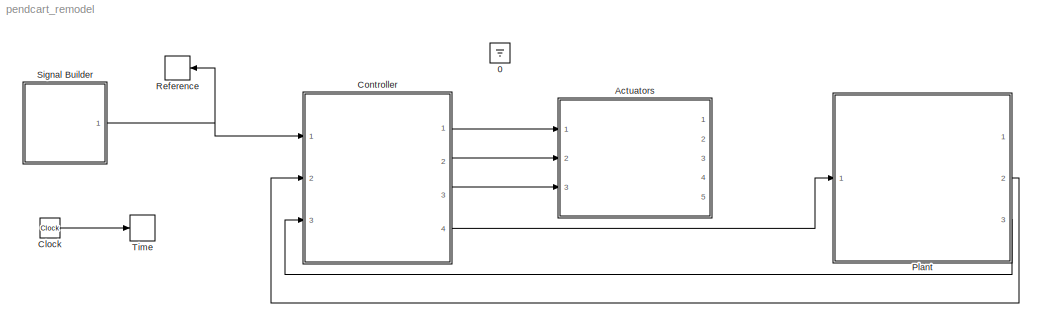
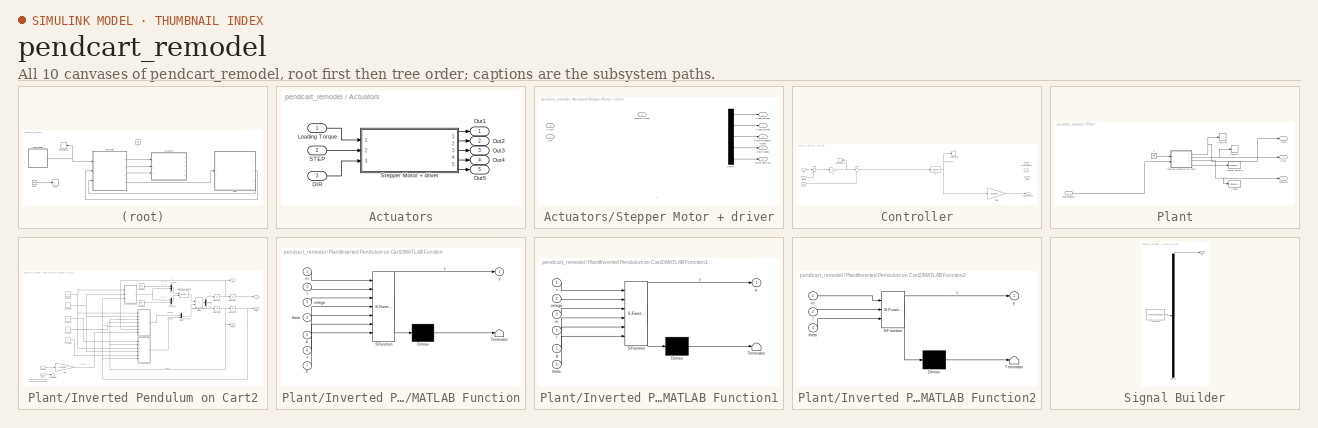
[diagram: thumbnail index - all 10 canvases of the model, root first then tree order]
MODEL pendcart_remodel
KIND model
BLOCK [Ground] 0
  SID = 94
BLOCK [SubSystem] Actuators
  Ports = [3, 5]
  RequestExecContextInheritance = off
  SID = 493
  Variant = off
BLOCK [Inport] Actuators/DIR
  IconDisplay = Port number
  Port = 3
  SID = 496
BLOCK [Inport] Actuators/Loading Torque
  IconDisplay = Port number
  SID = 494
BLOCK [Outport] Actuators/Out1
  IconDisplay = Port number
  SID = 497
BLOCK [Outport] Actuators/Out2
  IconDisplay = Port number
  Port = 2
  SID = 498
BLOCK [Outport] Actuators/Out3
  IconDisplay = Port number
  Port = 3
  SID = 499
BLOCK [Outport] Actuators/Out4
  IconDisplay = Port number
  Port = 4
  SID = 500
BLOCK [Outport] Actuators/Out5
  IconDisplay = Port number
  Port = 5
  SID = 501
BLOCK [Inport] Actuators/STEP
  IconDisplay = Port number
  Port = 2
  SID = 495
BLOCK [SubSystem] Actuators/Stepper Motor + driver
  Ports = [3, 5]
  RequestExecContextInheritance = off
  SID = 423
  Variant = off
BLOCK [Inport] Actuators/Stepper Motor + driver/DIR
  IconDisplay = Port number
  Port = 3
  SID = 426
BLOCK [Demux] Actuators/Stepper Motor + driver/Demux
  DisplayOption = bar
  Outputs = 5
  Ports = [1, 5]
  SID = 428
BLOCK [Outport] Actuators/Stepper Motor + driver/Electromagnetic torque
  IconDisplay = Port number
  Port = 3
  SID = 478
BLOCK [Inport] Actuators/Stepper Motor + driver/Loading Torque
  IconDisplay = Port number
  SID = 424
BLOCK [Outport] Actuators/Stepper Motor + driver/Phase current
  IconDisplay = Port number
  Port = 2
  SID = 477
BLOCK [Outport] Actuators/Stepper Motor + driver/Phase voltage
  IconDisplay = Port number
  SID = 476
BLOCK [Outport] Actuators/Stepper Motor + driver/Rotor position
  IconDisplay = Port number
  Port = 5
  SID = 480
BLOCK [Outport] Actuators/Stepper Motor + driver/Rotor speed
  IconDisplay = Port number
  Port = 4
  SID = 479
BLOCK [Inport] Actuators/Stepper Motor + driver/STEP
  IconDisplay = Port number
  Port = 2
  SID = 425
BLOCK [Clock] Clock
  SID = 4
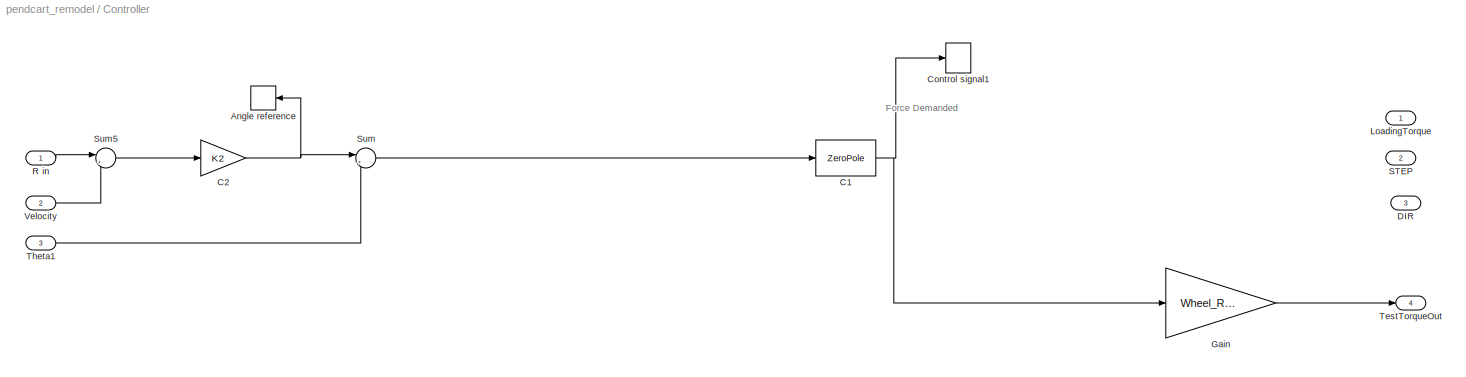
BLOCK [SubSystem] Controller
  Ports = [3, 4]
  RequestExecContextInheritance = off
  SID = 251
  Variant = off
BLOCK [ToWorkspace] Controller/Angle reference
  MaxDataPoints = inf
  Ports = [1]
  SID = 2
  SampleTime = -1
  VariableName = ri
BLOCK [ZeroPole] Controller/C1
  Gain = [K1]
  Poles = [-p1]
  SID = 253
  Zeros = [-p]
BLOCK [Gain] Controller/C2
  Gain = K2
  OutDataTypeStr = Inherit: Inherit via internal rule
  ParamDataTypeStr = Inherit: Inherit via internal rule
  SID = 114
  SaturateOnIntegerOverflow = off
BLOCK [ToWorkspace] Controller/Control signal1
  MaxDataPoints = inf
  Ports = [1]
  SID = 254
  SampleTime = -1
  VariableName = u
BLOCK [Outport] Controller/DIR
  IconDisplay = Port number
  Port = 3
  SID = 258
BLOCK [Gain] Controller/Gain
  Gain = Wheel_Radius
  OutDataTypeStr = Inherit: Inherit via internal rule
  ParamDataTypeStr = Inherit: Inherit via internal rule
  SID = 255
  SaturateOnIntegerOverflow = off
BLOCK [Outport] Controller/LoadingTorque
  IconDisplay = Port number
  SID = 256
BLOCK [Inport] Controller/R in
  IconDisplay = Port number
  SID = 252
BLOCK [Outport] Controller/STEP
  IconDisplay = Port number
  Port = 2
  SID = 257
BLOCK [Sum] Controller/Sum
  IconShape = round
  InputSameDT = off
  Inputs = |+-
  OutDataTypeStr = Inherit: Inherit via internal rule
  Ports = [2, 1]
  SID = 35
  SaturateOnIntegerOverflow = off
BLOCK [Sum] Controller/Sum5
  IconShape = round
  InputSameDT = off
  Inputs = |+-
  OutDataTypeStr = Inherit: Inherit via internal rule
  Ports = [2, 1]
  SID = 38
  SaturateOnIntegerOverflow = off
BLOCK [Outport] Controller/TestTorqueOut
  IconDisplay = Port number
  Port = 4
  SID = 259
BLOCK [Inport] Controller/Theta1
  IconDisplay = Port number
  Port = 3
  SID = 492
BLOCK [Inport] Controller/Velocity
  IconDisplay = Port number
  Port = 2
  SID = 491
BLOCK [SubSystem] Plant
  Ports = [1, 3]
  RequestExecContextInheritance = off
  SID = 374
  Variant = off
BLOCK [Ground] Plant/0
  SID = 379
BLOCK [ToWorkspace] Plant/Angle
  MaxDataPoints = inf
  Ports = [1]
  SID = 380
  SampleTime = -1
  VariableName = theta
BLOCK [ToWorkspace] Plant/Angular velocity
  MaxDataPoints = inf
  Ports = [1]
  SID = 381
  SampleTime = -1
  VariableName = omega
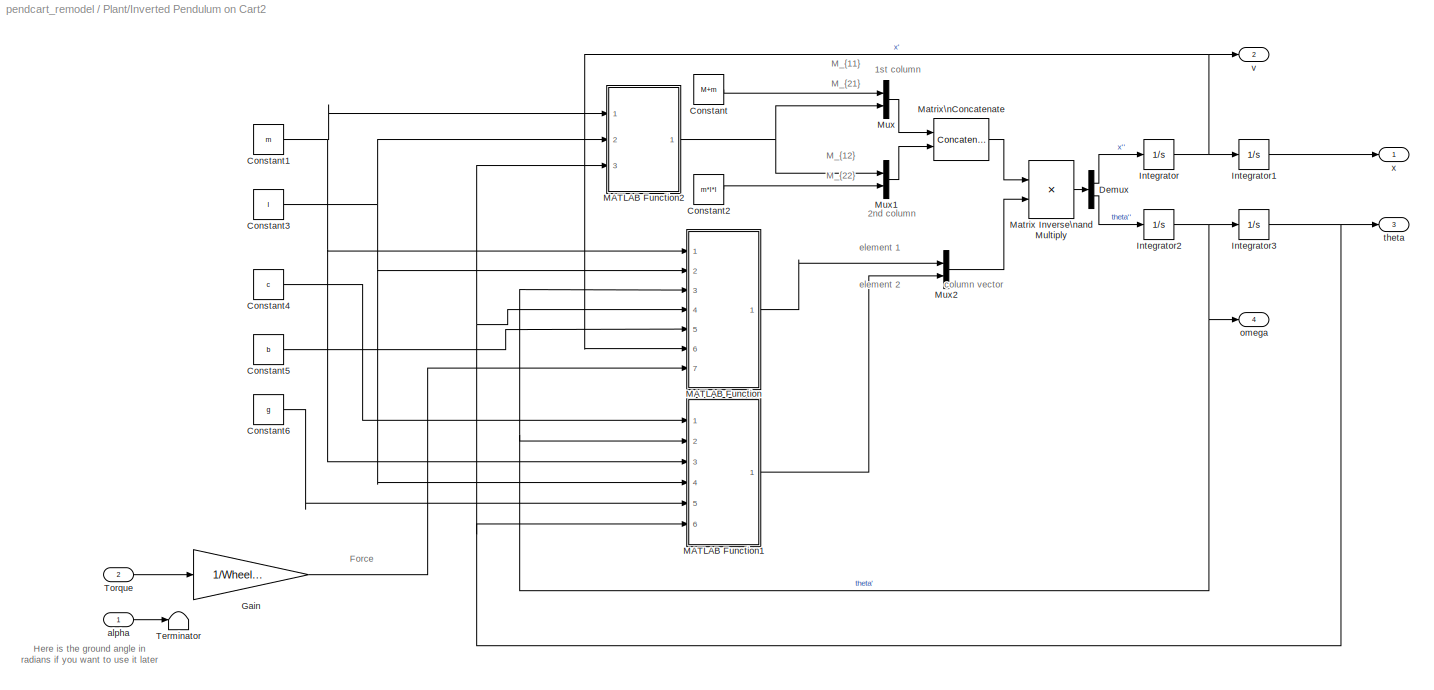
BLOCK [SubSystem] Plant/Inverted Pendulum on Cart2
  Ports = [2, 4]
  RequestExecContextInheritance = off
  SID = 382
  Variant = off
BLOCK [Constant] Plant/Inverted Pendulum on Cart2/Constant
  SID = 385
  Value = M+m
BLOCK [Constant] Plant/Inverted Pendulum on Cart2/Constant1
  SID = 386
  Value = m
BLOCK [Constant] Plant/Inverted Pendulum on Cart2/Constant2
  SID = 387
  Value = m*l*l
BLOCK [Constant] Plant/Inverted Pendulum on Cart2/Constant3
  SID = 388
  Value = l
BLOCK [Constant] Plant/Inverted Pendulum on Cart2/Constant4
  SID = 389
  Value = c
BLOCK [Constant] Plant/Inverted Pendulum on Cart2/Constant5
  SID = 390
  Value = b
BLOCK [Constant] Plant/Inverted Pendulum on Cart2/Constant6
  SID = 391
  Value = g
BLOCK [Demux] Plant/Inverted Pendulum on Cart2/Demux
  DisplayOption = bar
  Outputs = 2
  Ports = [1, 2]
  SID = 392
BLOCK [Gain] Plant/Inverted Pendulum on Cart2/Gain
  Gain = 1/Wheel_Radius
  OutDataTypeStr = Inherit: Inherit via internal rule
  ParamDataTypeStr = Inherit: Inherit via internal rule
  SID = 393
  SaturateOnIntegerOverflow = off
BLOCK [Integrator] Plant/Inverted Pendulum on Cart2/Integrator
  Ports = [1, 1]
  SID = 394
BLOCK [Integrator] Plant/Inverted Pendulum on Cart2/Integrator1
  Ports = [1, 1]
  SID = 395
BLOCK [Integrator] Plant/Inverted Pendulum on Cart2/Integrator2
  Ports = [1, 1]
  SID = 396
BLOCK [Integrator] Plant/Inverted Pendulum on Cart2/Integrator3
  InitialCondition = theta0
  Ports = [1, 1]
  SID = 397
BLOCK [SubSystem] Plant/Inverted Pendulum on Cart2/MATLAB Function
  ErrorFcn = Stateflow.Translate.translate
  PermitHierarchicalResolution = ExplicitOnly
  Ports = [7, 1]
  RequestExecContextInheritance = off
  SFBlockType = MATLAB Function
  SID = 398
  TreatAsAtomicUnit = on
  Variant = off
BLOCK [Demux] Plant/Inverted Pendulum on Cart2/MATLAB Function/ Demux 
  Outputs = 1
  Ports = [1, 1]
  SID = 398::20
BLOCK [S-Function] Plant/Inverted Pendulum on Cart2/MATLAB Function/ SFunction 
  EnableBusSupport = on
  FunctionName = sf_sfun
  PortCounts = [7 2]
  Ports = [7, 2]
  SFcnIsStateOwnerBlock = off
  SFunctionDeploymentMode = off
  SID = 398::19
  Tag = Stateflow S-Function pendcart_remodel 2
BLOCK [Terminator] Plant/Inverted Pendulum on Cart2/MATLAB Function/ Terminator 
  SID = 398::21
BLOCK [Inport] Plant/Inverted Pendulum on Cart2/MATLAB Function/F
  IconDisplay = Port number
  Port = 7
  SID = 398::29
BLOCK [Inport] Plant/Inverted Pendulum on Cart2/MATLAB Function/b
  IconDisplay = Port number
  Port = 5
  SID = 398::27
BLOCK [Inport] Plant/Inverted Pendulum on Cart2/MATLAB Function/l
  IconDisplay = Port number
  Port = 2
  SID = 398::24
BLOCK [Inport] Plant/Inverted Pendulum on Cart2/MATLAB Function/m
  IconDisplay = Port number
  SID = 398::23
BLOCK [Inport] Plant/Inverted Pendulum on Cart2/MATLAB Function/omega
  IconDisplay = Port number
  Port = 3
  SID = 398::25
BLOCK [Inport] Plant/Inverted Pendulum on Cart2/MATLAB Function/theta
  IconDisplay = Port number
  Port = 4
  SID = 398::26
BLOCK [Inport] Plant/Inverted Pendulum on Cart2/MATLAB Function/v
  IconDisplay = Port number
  Port = 6
  SID = 398::28
BLOCK [Outport] Plant/Inverted Pendulum on Cart2/MATLAB Function/y
  IconDisplay = Port number
  SID = 398::5
BLOCK [SubSystem] Plant/Inverted Pendulum on Cart2/MATLAB Function1
  ErrorFcn = Stateflow.Translate.translate
  PermitHierarchicalResolution = ExplicitOnly
  Ports = [6, 1]
  RequestExecContextInheritance = off
  SFBlockType = MATLAB Function
  SID = 399
  TreatAsAtomicUnit = on
  Variant = off
BLOCK [Demux] Plant/Inverted Pendulum on Cart2/MATLAB Function1/ Demux 
  Outputs = 1
  Ports = [1, 1]
  SID = 399::20
BLOCK [S-Function] Plant/Inverted Pendulum on Cart2/MATLAB Function1/ SFunction 
  EnableBusSupport = on
  FunctionName = sf_sfun
  PortCounts = [6 2]
  Ports = [6, 2]
  SFcnIsStateOwnerBlock = off
  SFunctionDeploymentMode = off
  SID = 399::19
  Tag = Stateflow S-Function pendcart_remodel 1
BLOCK [Terminator] Plant/Inverted Pendulum on Cart2/MATLAB Function1/ Terminator 
  SID = 399::21
BLOCK [Inport] Plant/Inverted Pendulum on Cart2/MATLAB Function1/c
  IconDisplay = Port number
  SID = 399::23
BLOCK [Inport] Plant/Inverted Pendulum on Cart2/MATLAB Function1/g
  IconDisplay = Port number
  Port = 5
  SID = 399::27
BLOCK [Inport] Plant/Inverted Pendulum on Cart2/MATLAB Function1/l
  IconDisplay = Port number
  Port = 4
  SID = 399::26
BLOCK [Inport] Plant/Inverted Pendulum on Cart2/MATLAB Function1/m
  IconDisplay = Port number
  Port = 3
  SID = 399::25
BLOCK [Inport] Plant/Inverted Pendulum on Cart2/MATLAB Function1/omega
  IconDisplay = Port number
  Port = 2
  SID = 399::24
BLOCK [Inport] Plant/Inverted Pendulum on Cart2/MATLAB Function1/theta
  IconDisplay = Port number
  Port = 6
  SID = 399::28
BLOCK [Outport] Plant/Inverted Pendulum on Cart2/MATLAB Function1/y
  IconDisplay = Port number
  SID = 399::5
BLOCK [SubSystem] Plant/Inverted Pendulum on Cart2/MATLAB Function2
  ErrorFcn = Stateflow.Translate.translate
  PermitHierarchicalResolution = ExplicitOnly
  Ports = [3, 1]
  RequestExecContextInheritance = off
  SFBlockType = MATLAB Function
  SID = 400
  TreatAsAtomicUnit = on
  Variant = off
BLOCK [Demux] Plant/Inverted Pendulum on Cart2/MATLAB Function2/ Demux 
  Outputs = 1
  Ports = [1, 1]
  SID = 400::20
BLOCK [S-Function] Plant/Inverted Pendulum on Cart2/MATLAB Function2/ SFunction 
  EnableBusSupport = on
  FunctionName = sf_sfun
  PortCounts = [3 2]
  Ports = [3, 2]
  SFcnIsStateOwnerBlock = off
  SFunctionDeploymentMode = off
  SID = 400::19
  Tag = Stateflow S-Function pendcart_remodel 3
BLOCK [Terminator] Plant/Inverted Pendulum on Cart2/MATLAB Function2/ Terminator 
  SID = 400::21
BLOCK [Inport] Plant/Inverted Pendulum on Cart2/MATLAB Function2/l
  IconDisplay = Port number
  Port = 2
  SID = 400::24
BLOCK [Inport] Plant/Inverted Pendulum on Cart2/MATLAB Function2/m
  IconDisplay = Port number
  SID = 400::23
BLOCK [Inport] Plant/Inverted Pendulum on Cart2/MATLAB Function2/theta
  IconDisplay = Port number
  Port = 3
  SID = 400::25
BLOCK [Outport] Plant/Inverted Pendulum on Cart2/MATLAB Function2/y
  IconDisplay = Port number
  SID = 400::5
BLOCK [Product] Plant/Inverted Pendulum on Cart2/Matrix Inverse\nand Multiply
  InputSameDT = off
  Inputs = /*
  Multiplication = Matrix(*)
  OutDataTypeStr = Inherit: Inherit via internal rule
  Ports = [2, 1]
  RndMeth = Floor
  SID = 402
  SaturateOnIntegerOverflow = off
BLOCK [Concatenate] Plant/Inverted Pendulum on Cart2/Matrix\nConcatenate
  ConcatenateDimension = 2
  Mode = Multidimensional array
  Ports = [2, 1]
  SID = 401
BLOCK [Mux] Plant/Inverted Pendulum on Cart2/Mux
  DisplayOption = bar
  Inputs = 2
  Ports = [2, 1]
  SID = 403
BLOCK [Mux] Plant/Inverted Pendulum on Cart2/Mux1
  DisplayOption = bar
  Inputs = 2
  Ports = [2, 1]
  SID = 404
BLOCK [Mux] Plant/Inverted Pendulum on Cart2/Mux2
  DisplayOption = bar
  Inputs = 2
  Ports = [2, 1]
  SID = 405
BLOCK [Terminator] Plant/Inverted Pendulum on Cart2/Terminator
  SID = 406
BLOCK [Inport] Plant/Inverted Pendulum on Cart2/Torque
  IconDisplay = Port number
  Port = 2
  SID = 384
BLOCK [Inport] Plant/Inverted Pendulum on Cart2/alpha
  IconDisplay = Port number
  SID = 383
BLOCK [Outport] Plant/Inverted Pendulum on Cart2/omega
  IconDisplay = Port number
  Port = 4
  SID = 410
BLOCK [Outport] Plant/Inverted Pendulum on Cart2/theta
  IconDisplay = Port number
  Port = 3
  SID = 409
BLOCK [Outport] Plant/Inverted Pendulum on Cart2/v
  IconDisplay = Port number
  Port = 2
  SID = 408
BLOCK [Outport] Plant/Inverted Pendulum on Cart2/x
  IconDisplay = Port number
  SID = 407
BLOCK [ToWorkspace] Plant/Position
  MaxDataPoints = inf
  Ports = [1]
  SID = 422
  SampleTime = -1
  VariableName = x
BLOCK [Inport] Plant/TestTorqueIn
  IconDisplay = Port number
  SID = 378
BLOCK [Outport] Plant/ThetaOut
  IconDisplay = Port number
  Port = 3
  SID = 484
BLOCK [Outport] Plant/VOut
  IconDisplay = Port number
  Port = 2
  SID = 483
BLOCK [ToWorkspace] Plant/Velocity
  MaxDataPoints = inf
  Ports = [1]
  SID = 482
  SampleTime = -1
  VariableName = v
BLOCK [Outport] Plant/xOut
  IconDisplay = Port number
  SID = 485
BLOCK [ToWorkspace] Reference
  MaxDataPoints = inf
  Ports = [1]
  SID = 33
  SampleTime = -1
  VariableName = r
BLOCK [SubSystem] Signal Builder
  ClipboardFcn = sigbuilder_block('clipboard');
  CloseFcn = sigbuilder_block('close');
  ContinueFcn = sigbuilder_block('continue')
  CopyFcn = sigbuilder_block('copy');
  DeleteFcn = sigbuilder_block('delete');
  LoadFcn = sigbuilder_block('load');
  MaskHideContents = on
  ModelCloseFcn = sigbuilder_block('modelClose');
  NameChangeFcn = sigbuilder_block('namechange');
  OpenFcn = sigbuilder_block('open',[5.5 23 949 425 ]);
  PauseFcn = sigbuilder_block('pause')
  Ports = [0, 1]
  PreSaveFcn = sigbuilder_block('preSave');
  RequestExecContextInheritance = off
  SID = 245
  StartFcn = sigbuilder_block('start');
  StopFcn = sigbuilder_block('stop');
  Tag = STV Subsys
  Variant = off
BLOCK [Demux] Signal Builder/Demux
  Outputs = 1
  Ports = [1, 1]
  SID = 246
  Tag = STV Demux
BLOCK [FromWorkspace] Signal Builder/FromWs
  SID = 247
  SampleTime = 0
  SigBuilderData = DataTag0
  Tag = STV FromWs
  VariableName = tuvar
  VnvData = DataTag1
  ZeroCross = on
BLOCK [Outport] Signal Builder/R
  IconDisplay = Port number
  SID = 248
  Tag = STV Outport
BLOCK [ToWorkspace] Time
  MaxDataPoints = inf
  Ports = [1]
  SID = 40
  SampleTime = -1
  VariableName = t
ANNOTATION Actuators/Stepper Motor + driver: \n \n \n \n \n 1 \n \n Phase voltage \n \n V \n \n Vph \n \n \n 2 \n \n Phase current \n \n A \n \n Iph \n \n \n 3 \n \n Electromagnetic torque \n \n N.m \n \n Te \n \n \n 4 \n \n Rotor speed \n \n rad/s \n \n w \n \n \n 5 \n \n Rotor position \n \n https://au.mathworks.com/help/physmod/sps/powersys/ref/steppermotor.html \n \n \n \n
ANNOTATION Controller: Force Demanded
ANNOTATION Plant/Inverted Pendulum on Cart2: 1st column
ANNOTATION Plant/Inverted Pendulum on Cart2: 2nd column
ANNOTATION Plant/Inverted Pendulum on Cart2: Force
ANNOTATION Plant/Inverted Pendulum on Cart2: Here is the ground angle in\nradians if you want to use it later
ANNOTATION Plant/Inverted Pendulum on Cart2: M_{11}
ANNOTATION Plant/Inverted Pendulum on Cart2: M_{12}
ANNOTATION Plant/Inverted Pendulum on Cart2: M_{21}
ANNOTATION Plant/Inverted Pendulum on Cart2: M_{22}
ANNOTATION Plant/Inverted Pendulum on Cart2: column vector
ANNOTATION Plant/Inverted Pendulum on Cart2: element 1
ANNOTATION Plant/Inverted Pendulum on Cart2: element 2
LINE Actuators/DIR:1 -> Actuators/Stepper Motor + driver:3
LINE Actuators/Loading Torque:1 -> Actuators/Stepper Motor + driver:1
LINE Actuators/STEP:1 -> Actuators/Stepper Motor + driver:2
LINE Actuators/Stepper Motor + driver/Demux:1 -> Actuators/Stepper Motor + driver/Phase voltage:1
LINE Actuators/Stepper Motor + driver/Demux:2 -> Actuators/Stepper Motor + driver/Phase current:1
LINE Actuators/Stepper Motor + driver/Demux:3 -> Actuators/Stepper Motor + driver/Electromagnetic torque:1
LINE Actuators/Stepper Motor + driver/Demux:4 -> Actuators/Stepper Motor + driver/Rotor speed:1
LINE Actuators/Stepper Motor + driver/Demux:5 -> Actuators/Stepper Motor + driver/Rotor position:1
LINE Actuators/Stepper Motor + driver:1 -> Actuators/Out1:1
LINE Actuators/Stepper Motor + driver:2 -> Actuators/Out2:1
LINE Actuators/Stepper Motor + driver:3 -> Actuators/Out3:1
LINE Actuators/Stepper Motor + driver:4 -> Actuators/Out4:1
LINE Actuators/Stepper Motor + driver:5 -> Actuators/Out5:1
LINE Clock:1 -> Time:1
NET Controller/C1:1 -> Controller/Control signal1:1, Controller/Gain:1
NET Controller/C2:1 -> Controller/Angle reference:1, Controller/Sum:1
LINE Controller/Gain:1 -> Controller/TestTorqueOut:1
LINE Controller/R in:1 -> Controller/Sum5:1
LINE Controller/Sum5:1 -> Controller/C2:1
LINE Controller/Sum:1 -> Controller/C1:1
LINE Controller/Theta1:1 -> Controller/Sum:2
LINE Controller/Velocity:1 -> Controller/Sum5:2
LINE Controller:1 -> Actuators:1
LINE Controller:2 -> Actuators:2
LINE Controller:3 -> Actuators:3
LINE Controller:4 -> Plant:1
LINE Plant/0:1 -> Plant/Inverted Pendulum on Cart2:1
NET Plant/Inverted Pendulum on Cart2/Constant1:1 -> Plant/Inverted Pendulum on Cart2/MATLAB Function1:3, Plant/Inverted Pendulum on Cart2/MATLAB Function2:1, Plant/Inverted Pendulum on Cart2/MATLAB Function:1
LINE Plant/Inverted Pendulum on Cart2/Constant2:1 -> Plant/Inverted Pendulum on Cart2/Mux1:2
NET Plant/Inverted Pendulum on Cart2/Constant3:1 -> Plant/Inverted Pendulum on Cart2/MATLAB Function1:4, Plant/Inverted Pendulum on Cart2/MATLAB Function2:2, Plant/Inverted Pendulum on Cart2/MATLAB Function:2
LINE Plant/Inverted Pendulum on Cart2/Constant4:1 -> Plant/Inverted Pendulum on Cart2/MATLAB Function1:1
LINE Plant/Inverted Pendulum on Cart2/Constant5:1 -> Plant/Inverted Pendulum on Cart2/MATLAB Function:5
LINE Plant/Inverted Pendulum on Cart2/Constant6:1 -> Plant/Inverted Pendulum on Cart2/MATLAB Function1:5
LINE Plant/Inverted Pendulum on Cart2/Constant:1 -> Plant/Inverted Pendulum on Cart2/Mux:1
LINE Plant/Inverted Pendulum on Cart2/Demux:1 -> Plant/Inverted Pendulum on Cart2/Integrator:1
LINE Plant/Inverted Pendulum on Cart2/Demux:2 -> Plant/Inverted Pendulum on Cart2/Integrator2:1
LINE Plant/Inverted Pendulum on Cart2/Gain:1 -> Plant/Inverted Pendulum on Cart2/MATLAB Function:7
LINE Plant/Inverted Pendulum on Cart2/Integrator1:1 -> Plant/Inverted Pendulum on Cart2/x:1
NET Plant/Inverted Pendulum on Cart2/Integrator2:1 -> Plant/Inverted Pendulum on Cart2/Integrator3:1, Plant/Inverted Pendulum on Cart2/MATLAB Function1:2, Plant/Inverted Pendulum on Cart2/MATLAB Function:3, Plant/Inverted Pendulum on Cart2/omega:1
NET Plant/Inverted Pendulum on Cart2/Integrator3:1 -> Plant/Inverted Pendulum on Cart2/MATLAB Function1:6, Plant/Inverted Pendulum on Cart2/MATLAB Function2:3, Plant/Inverted Pendulum on Cart2/MATLAB Function:4, Plant/Inverted Pendulum on Cart2/theta:1
NET Plant/Inverted Pendulum on Cart2/Integrator:1 -> Plant/Inverted Pendulum on Cart2/Integrator1:1, Plant/Inverted Pendulum on Cart2/MATLAB Function:6, Plant/Inverted Pendulum on Cart2/v:1
LINE Plant/Inverted Pendulum on Cart2/MATLAB Function/ Demux :1 -> Plant/Inverted Pendulum on Cart2/MATLAB Function/ Terminator :1
LINE Plant/Inverted Pendulum on Cart2/MATLAB Function/ SFunction :1 -> Plant/Inverted Pendulum on Cart2/MATLAB Function/ Demux :1
LINE Plant/Inverted Pendulum on Cart2/MATLAB Function/ SFunction :2 -> Plant/Inverted Pendulum on Cart2/MATLAB Function/y:1
LINE Plant/Inverted Pendulum on Cart2/MATLAB Function/F:1 -> Plant/Inverted Pendulum on Cart2/MATLAB Function/ SFunction :7
LINE Plant/Inverted Pendulum on Cart2/MATLAB Function/b:1 -> Plant/Inverted Pendulum on Cart2/MATLAB Function/ SFunction :5
LINE Plant/Inverted Pendulum on Cart2/MATLAB Function/l:1 -> Plant/Inverted Pendulum on Cart2/MATLAB Function/ SFunction :2
LINE Plant/Inverted Pendulum on Cart2/MATLAB Function/m:1 -> Plant/Inverted Pendulum on Cart2/MATLAB Function/ SFunction :1
LINE Plant/Inverted Pendulum on Cart2/MATLAB Function/omega:1 -> Plant/Inverted Pendulum on Cart2/MATLAB Function/ SFunction :3
LINE Plant/Inverted Pendulum on Cart2/MATLAB Function/theta:1 -> Plant/Inverted Pendulum on Cart2/MATLAB Function/ SFunction :4
LINE Plant/Inverted Pendulum on Cart2/MATLAB Function/v:1 -> Plant/Inverted Pendulum on Cart2/MATLAB Function/ SFunction :6
LINE Plant/Inverted Pendulum on Cart2/MATLAB Function1/ Demux :1 -> Plant/Inverted Pendulum on Cart2/MATLAB Function1/ Terminator :1
LINE Plant/Inverted Pendulum on Cart2/MATLAB Function1/ SFunction :1 -> Plant/Inverted Pendulum on Cart2/MATLAB Function1/ Demux :1
LINE Plant/Inverted Pendulum on Cart2/MATLAB Function1/ SFunction :2 -> Plant/Inverted Pendulum on Cart2/MATLAB Function1/y:1
LINE Plant/Inverted Pendulum on Cart2/MATLAB Function1/c:1 -> Plant/Inverted Pendulum on Cart2/MATLAB Function1/ SFunction :1
LINE Plant/Inverted Pendulum on Cart2/MATLAB Function1/g:1 -> Plant/Inverted Pendulum on Cart2/MATLAB Function1/ SFunction :5
LINE Plant/Inverted Pendulum on Cart2/MATLAB Function1/l:1 -> Plant/Inverted Pendulum on Cart2/MATLAB Function1/ SFunction :4
LINE Plant/Inverted Pendulum on Cart2/MATLAB Function1/m:1 -> Plant/Inverted Pendulum on Cart2/MATLAB Function1/ SFunction :3
LINE Plant/Inverted Pendulum on Cart2/MATLAB Function1/omega:1 -> Plant/Inverted Pendulum on Cart2/MATLAB Function1/ SFunction :2
LINE Plant/Inverted Pendulum on Cart2/MATLAB Function1/theta:1 -> Plant/Inverted Pendulum on Cart2/MATLAB Function1/ SFunction :6
LINE Plant/Inverted Pendulum on Cart2/MATLAB Function1:1 -> Plant/Inverted Pendulum on Cart2/Mux2:2
LINE Plant/Inverted Pendulum on Cart2/MATLAB Function2/ Demux :1 -> Plant/Inverted Pendulum on Cart2/MATLAB Function2/ Terminator :1
LINE Plant/Inverted Pendulum on Cart2/MATLAB Function2/ SFunction :1 -> Plant/Inverted Pendulum on Cart2/MATLAB Function2/ Demux :1
LINE Plant/Inverted Pendulum on Cart2/MATLAB Function2/ SFunction :2 -> Plant/Inverted Pendulum on Cart2/MATLAB Function2/y:1
LINE Plant/Inverted Pendulum on Cart2/MATLAB Function2/l:1 -> Plant/Inverted Pendulum on Cart2/MATLAB Function2/ SFunction :2
LINE Plant/Inverted Pendulum on Cart2/MATLAB Function2/m:1 -> Plant/Inverted Pendulum on Cart2/MATLAB Function2/ SFunction :1
LINE Plant/Inverted Pendulum on Cart2/MATLAB Function2/theta:1 -> Plant/Inverted Pendulum on Cart2/MATLAB Function2/ SFunction :3
NET Plant/Inverted Pendulum on Cart2/MATLAB Function2:1 -> Plant/Inverted Pendulum on Cart2/Mux1:1, Plant/Inverted Pendulum on Cart2/Mux:2
LINE Plant/Inverted Pendulum on Cart2/MATLAB Function:1 -> Plant/Inverted Pendulum on Cart2/Mux2:1
LINE Plant/Inverted Pendulum on Cart2/Matrix Inverse\nand Multiply:1 -> Plant/Inverted Pendulum on Cart2/Demux:1
LINE Plant/Inverted Pendulum on Cart2/Matrix\nConcatenate:1 -> Plant/Inverted Pendulum on Cart2/Matrix Inverse\nand Multiply:1
LINE Plant/Inverted Pendulum on Cart2/Mux1:1 -> Plant/Inverted Pendulum on Cart2/Matrix\nConcatenate:2
LINE Plant/Inverted Pendulum on Cart2/Mux2:1 -> Plant/Inverted Pendulum on Cart2/Matrix Inverse\nand Multiply:2
LINE Plant/Inverted Pendulum on Cart2/Mux:1 -> Plant/Inverted Pendulum on Cart2/Matrix\nConcatenate:1
LINE Plant/Inverted Pendulum on Cart2/Torque:1 -> Plant/Inverted Pendulum on Cart2/Gain:1
LINE Plant/Inverted Pendulum on Cart2/alpha:1 -> Plant/Inverted Pendulum on Cart2/Terminator:1
NET Plant/Inverted Pendulum on Cart2:1 -> Plant/Position:1, Plant/xOut:1
NET Plant/Inverted Pendulum on Cart2:2 -> Plant/VOut:1, Plant/Velocity:1
NET Plant/Inverted Pendulum on Cart2:3 -> Plant/Angle:1, Plant/ThetaOut:1
LINE Plant/Inverted Pendulum on Cart2:4 -> Plant/Angular velocity:1
LINE Plant/TestTorqueIn:1 -> Plant/Inverted Pendulum on Cart2:2
LINE Plant:2 -> Controller:2
LINE Plant:3 -> Controller:3
LINE Signal Builder/Demux:1 -> Signal Builder/R:1
LINE Signal Builder/FromWs:1 -> Signal Builder/Demux:1
NET Signal Builder:1 -> Controller:1, Reference:1
note: NET lines group one-source signal fan-out (src -> all destinations, sorted); 1:1 wires keep LINE
CHART Plant/Inverted Pendulum on Cart2/MATLAB Function1 states=1 transitions=1
  STATE_LABEL 'eML_blk_kernel()'
CHART Plant/Inverted Pendulum on Cart2/MATLAB Function states=1 transitions=1
  STATE_LABEL 'eML_blk_kernel()'
CHART Plant/Inverted Pendulum on Cart2/MATLAB Function2 states=1 transitions=1
  STATE_LABEL 'eML_blk_kernel()'
